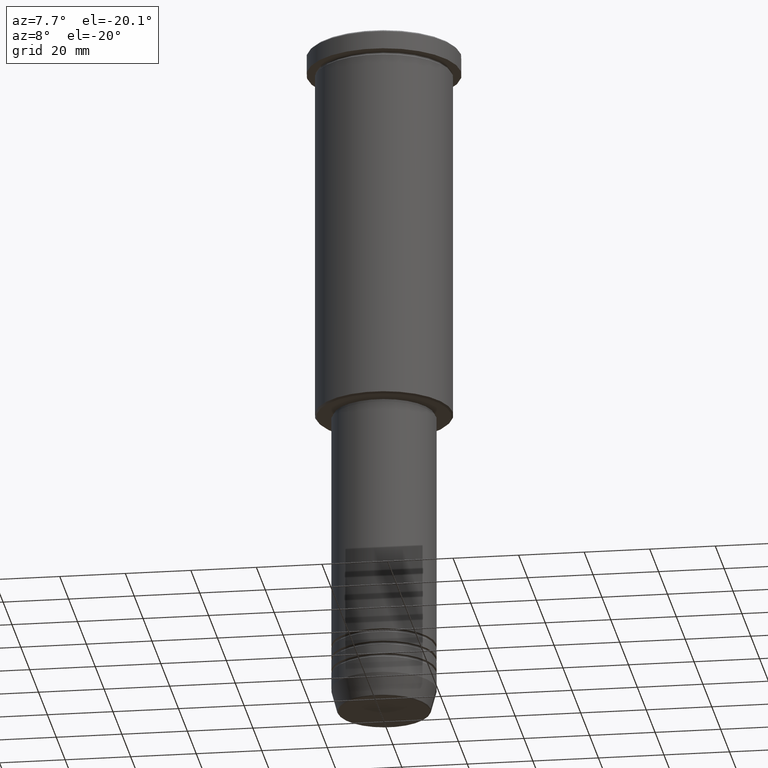
[diagram: clean part render]
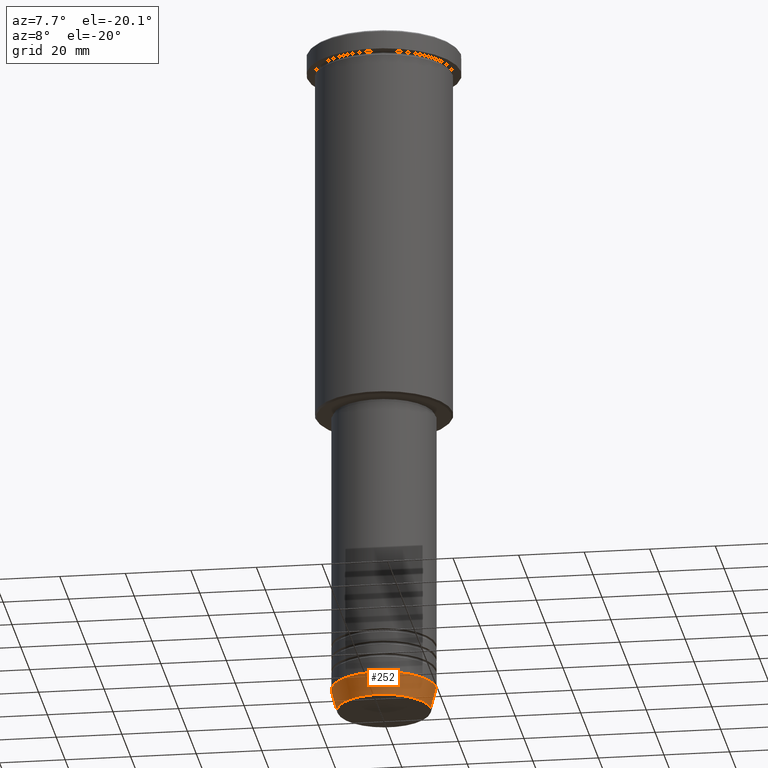
[diagram: same view with one face highlighted and labeled with its STEP entity id]
A machine part, auxiliary view. The second image highlights one B-rep face of the part: STEP entity #252.
In plain terms, the highlighted conical surface has half-angle 15 deg.
Its self-contained STEP definition (entity closure, byte-faithful):
#1 = CARTESIAN_POINT ( 'NONE',  ( 16.00000000000000000, 0.000000000000000000, -204.0000000000000284 ) ) ;
#4 = DIRECTION ( 'NONE',  ( 1.000000000000000000, 0.000000000000000000, 0.000000000000000000 ) ) ;
#79 = CARTESIAN_POINT ( 'NONE',  ( 0.000000000000000000, 0.000000000000000000, -204.0000000000000284 ) ) ;
#87 = EDGE_CURVE ( 'NONE', #426, #789, #796, .T. ) ;
#107 = EDGE_CURVE ( 'NONE', #461, #1000, #1156, .T. ) ;
#176 = FACE_OUTER_BOUND ( 'NONE', #572, .T. ) ;
#205 = VECTOR ( 'NONE', #607, 1000.000000000000000 ) ;
#252 = ADVANCED_FACE ( 'NONE', ( #176 ), #1161, .T. ) ;
#266 = AXIS2_PLACEMENT_3D ( 'NONE', #890, #906, #455 ) ;
#337 = CARTESIAN_POINT ( 'NONE',  ( 0.000000000000000000, 0.000000000000000000, -210.6294095225512706 ) ) ;
#349 = CIRCLE ( 'NONE', #860, 16.00000000000000000 ) ;
#404 = VECTOR ( 'NONE', #502, 1000.000000000000000 ) ;
#426 = VERTEX_POINT ( 'NONE', #644 ) ;
#434 = DIRECTION ( 'NONE',  ( -0.000000000000000000, -0.000000000000000000, 1.000000000000000000 ) ) ;
#455 = DIRECTION ( 'NONE',  ( 1.000000000000000000, 0.000000000000000000, 0.000000000000000000 ) ) ;
#461 = VERTEX_POINT ( 'NONE', #760 ) ;
#502 = DIRECTION ( 'NONE',  ( 0.2588190451025213501, 0.000000000000000000, 0.9659258262890680902 ) ) ;
#516 = ORIENTED_EDGE ( 'NONE', *, *, #87, .T. ) ;
#568 = ORIENTED_EDGE ( 'NONE', *, *, #1179, .F. ) ;
#572 = EDGE_LOOP ( 'NONE', ( #773, #778, #516, #568 ) ) ;
#607 = DIRECTION ( 'NONE',  ( -0.2588190451025213501, 3.169619151431772337E-17, 0.9659258262890680902 ) ) ;
#611 = CARTESIAN_POINT ( 'NONE',  ( 16.00000000000000000, 0.000000000000000000, -204.0000000000000284 ) ) ;
#644 = CARTESIAN_POINT ( 'NONE',  ( 14.22365507213718239, 0.000000000000000000, -210.6294095225512706 ) ) ;
#694 = CARTESIAN_POINT ( 'NONE',  ( -16.00000000000000000, 1.959434878635765131E-15, -204.0000000000000284 ) ) ;
#705 = DIRECTION ( 'NONE',  ( -0.000000000000000000, -0.000000000000000000, 1.000000000000000000 ) ) ;
#760 = CARTESIAN_POINT ( 'NONE',  ( -14.22365507213718239, 1.850665122131322942E-15, -210.6294095225512706 ) ) ;
#772 = CIRCLE ( 'NONE', #1066, 14.22365507213718239 ) ;
#773 = ORIENTED_EDGE ( 'NONE', *, *, #107, .F. ) ;
#778 = ORIENTED_EDGE ( 'NONE', *, *, #1164, .T. ) ;
#781 = CARTESIAN_POINT ( 'NONE',  ( -16.00000000000000000, 1.959434878635765131E-15, -204.0000000000000284 ) ) ;
#789 = VERTEX_POINT ( 'NONE', #1 ) ;
#796 = LINE ( 'NONE', #611, #404 ) ;
#860 = AXIS2_PLACEMENT_3D ( 'NONE', #79, #705, #4 ) ;
#890 = CARTESIAN_POINT ( 'NONE',  ( 0.000000000000000000, 0.000000000000000000, -204.0000000000000284 ) ) ;
#906 = DIRECTION ( 'NONE',  ( -0.000000000000000000, -0.000000000000000000, 1.000000000000000000 ) ) ;
#1000 = VERTEX_POINT ( 'NONE', #694 ) ;
#1006 = DIRECTION ( 'NONE',  ( 1.000000000000000000, 0.000000000000000000, 0.000000000000000000 ) ) ;
#1066 = AXIS2_PLACEMENT_3D ( 'NONE', #337, #434, #1006 ) ;
#1156 = LINE ( 'NONE', #781, #205 ) ;
#1161 = CONICAL_SURFACE ( 'NONE', #266, 16.00000000000000000, 0.2617993877991500740 ) ;
#1164 = EDGE_CURVE ( 'NONE', #461, #426, #772, .T. ) ;
#1179 = EDGE_CURVE ( 'NONE', #1000, #789, #349, .T. ) ;